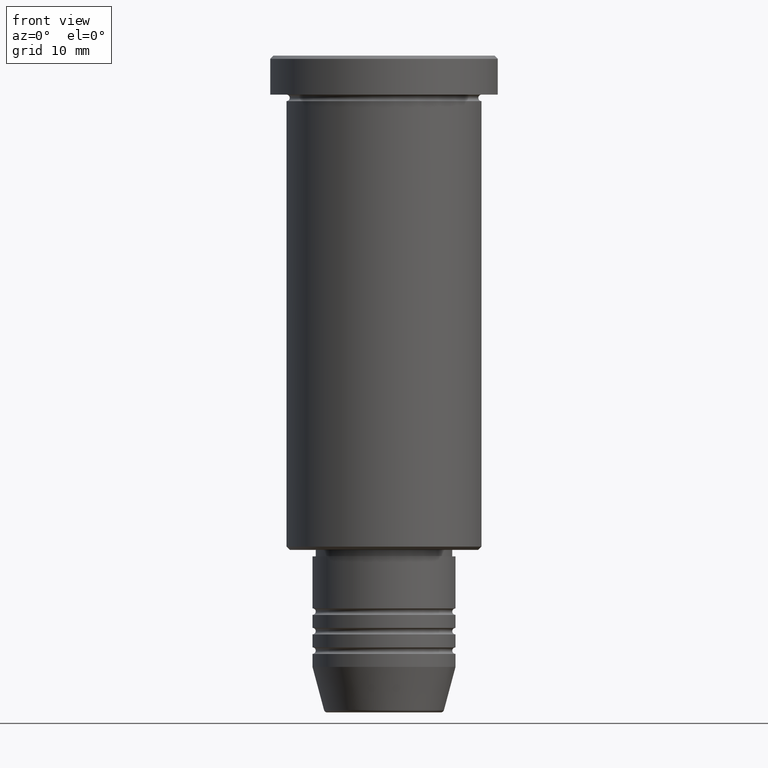
[diagram: clean part render]
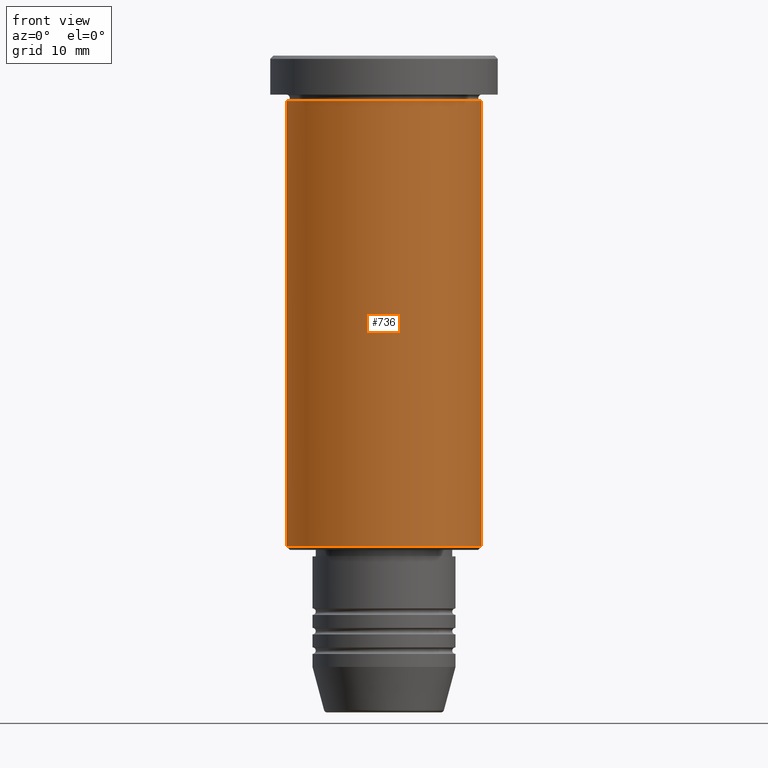
[diagram: same view with one face highlighted and labeled with its STEP entity id]
A machine part, front view. The second image highlights one B-rep face of the part: STEP entity #736.
In plain terms, the highlighted cylindrical surface (partial cylindrical patch) has radius 15 mm, axis along (-0, -0, 1).
Its self-contained STEP definition (entity closure, byte-faithful):
#155 = VECTOR ( 'NONE', #1111, 1000.000000000000000 ) ;
#172 = VERTEX_POINT ( 'NONE', #1130 ) ;
#211 = DIRECTION ( 'NONE',  ( -0.000000000000000000, -0.000000000000000000, 1.000000000000000000 ) ) ;
#218 = CIRCLE ( 'NONE', #980, 15.00000000000000000 ) ;
#240 = ORIENTED_EDGE ( 'NONE', *, *, #859, .F. ) ;
#248 = CARTESIAN_POINT ( 'NONE',  ( 0.000000000000000000, 0.000000000000000000, 0.000000000000000000 ) ) ;
#263 = FACE_OUTER_BOUND ( 'NONE', #1064, .T. ) ;
#357 = DIRECTION ( 'NONE',  ( -0.000000000000000000, -0.000000000000000000, 1.000000000000000000 ) ) ;
#441 = DIRECTION ( 'NONE',  ( 1.000000000000000000, 0.000000000000000000, 0.000000000000000000 ) ) ;
#457 = CARTESIAN_POINT ( 'NONE',  ( -15.00000000000000000, 1.836970198721029589E-15, 0.000000000000000000 ) ) ;
#503 = AXIS2_PLACEMENT_3D ( 'NONE', #248, #357, #1086 ) ;
#506 = ORIENTED_EDGE ( 'NONE', *, *, #682, .F. ) ;
#536 = CIRCLE ( 'NONE', #1139, 15.00000000000000000 ) ;
#551 = VERTEX_POINT ( 'NONE', #1034 ) ;
#563 = EDGE_CURVE ( 'NONE', #578, #618, #721, .T. ) ;
#574 = CARTESIAN_POINT ( 'NONE',  ( 15.00000000000000000, 0.000000000000000000, -75.49999999999998579 ) ) ;
#578 = VERTEX_POINT ( 'NONE', #574 ) ;
#604 = ORIENTED_EDGE ( 'NONE', *, *, #563, .T. ) ;
#618 = VERTEX_POINT ( 'NONE', #807 ) ;
#682 = EDGE_CURVE ( 'NONE', #172, #618, #218, .T. ) ;
#718 = CARTESIAN_POINT ( 'NONE',  ( 0.000000000000000000, 0.000000000000000000, -75.49999999999998579 ) ) ;
#721 = LINE ( 'NONE', #851, #939 ) ;
#736 = ADVANCED_FACE ( 'NONE', ( #263 ), #818, .T. ) ;
#761 = EDGE_CURVE ( 'NONE', #551, #578, #536, .T. ) ;
#796 = DIRECTION ( 'NONE',  ( -0.000000000000000000, -0.000000000000000000, 1.000000000000000000 ) ) ;
#807 = CARTESIAN_POINT ( 'NONE',  ( 15.00000000000000000, 0.000000000000000000, -6.999999999999995559 ) ) ;
#818 = CYLINDRICAL_SURFACE ( 'NONE', #503, 15.00000000000000000 ) ;
#851 = CARTESIAN_POINT ( 'NONE',  ( 15.00000000000000000, 0.000000000000000000, 0.000000000000000000 ) ) ;
#859 = EDGE_CURVE ( 'NONE', #551, #172, #1011, .T. ) ;
#939 = VECTOR ( 'NONE', #211, 1000.000000000000000 ) ;
#980 = AXIS2_PLACEMENT_3D ( 'NONE', #1072, #1091, #441 ) ;
#981 = DIRECTION ( 'NONE',  ( -1.000000000000000000, 0.000000000000000000, 0.000000000000000000 ) ) ;
#1011 = LINE ( 'NONE', #457, #155 ) ;
#1034 = CARTESIAN_POINT ( 'NONE',  ( -15.00000000000000000, 1.836970198721029589E-15, -75.49999999999998579 ) ) ;
#1064 = EDGE_LOOP ( 'NONE', ( #240, #1112, #604, #506 ) ) ;
#1072 = CARTESIAN_POINT ( 'NONE',  ( 0.000000000000000000, 0.000000000000000000, -6.999999999999995559 ) ) ;
#1086 = DIRECTION ( 'NONE',  ( 1.000000000000000000, 0.000000000000000000, 0.000000000000000000 ) ) ;
#1091 = DIRECTION ( 'NONE',  ( -0.000000000000000000, -0.000000000000000000, 1.000000000000000000 ) ) ;
#1111 = DIRECTION ( 'NONE',  ( -0.000000000000000000, -0.000000000000000000, 1.000000000000000000 ) ) ;
#1112 = ORIENTED_EDGE ( 'NONE', *, *, #761, .T. ) ;
#1130 = CARTESIAN_POINT ( 'NONE',  ( -15.00000000000000000, 1.836970198721029589E-15, -6.999999999999995559 ) ) ;
#1139 = AXIS2_PLACEMENT_3D ( 'NONE', #718, #796, #981 ) ;